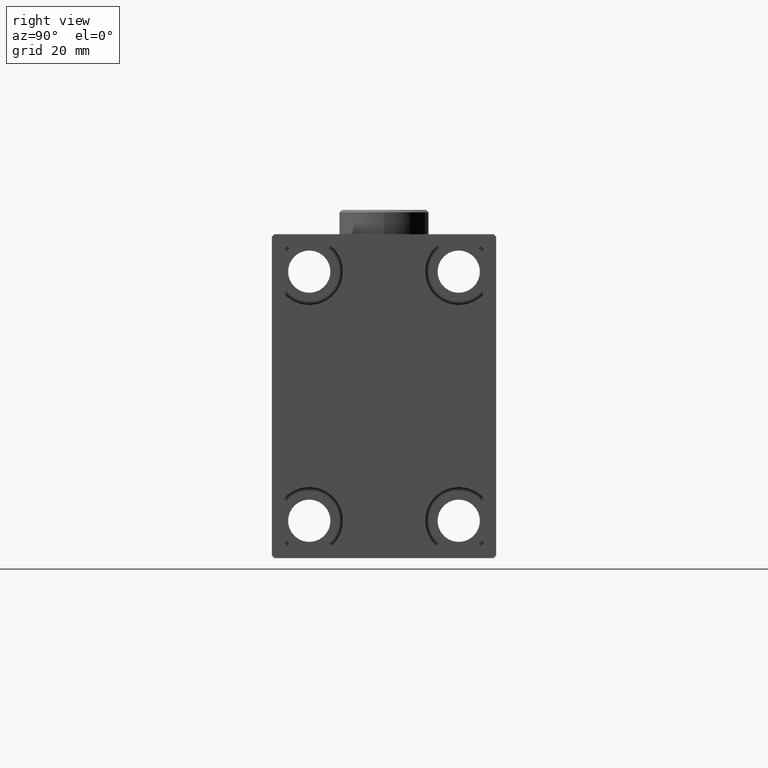
[diagram: clean part render]
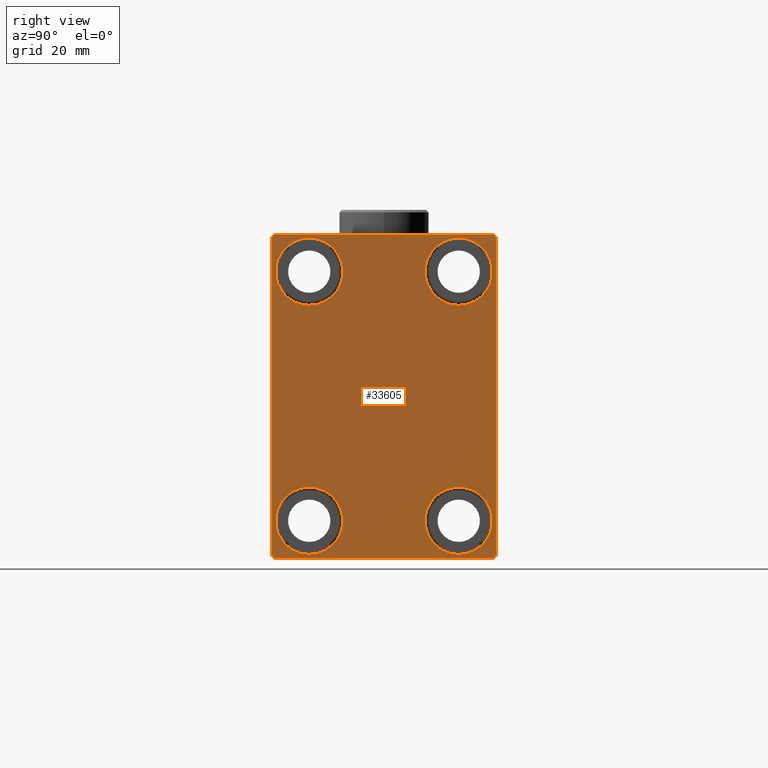
[diagram: same view with one face highlighted and labeled with its STEP entity id]
A machine part, right view. The second image highlights one B-rep face of the part: STEP entity #33605.
In plain terms, the highlighted planar face has unit normal (1, 0, 0).
Its self-contained STEP definition (entity closure, byte-faithful):
#62 = CARTESIAN_POINT ( 'NONE',  ( 110.0000000000000000, -21.99999999999999289, 32.49999999999999289 ) ) ;
#276 = DIRECTION ( 'NONE',  ( -1.000000000000000000, -0.000000000000000000, -0.000000000000000000 ) ) ;
#334 = ORIENTED_EDGE ( 'NONE', *, *, #29458, .T. ) ;
#338 = DIRECTION ( 'NONE',  ( 0.000000000000000000, -0.7071067811865474617, -0.7071067811865474617 ) ) ;
#566 = LINE ( 'NONE', #11296, #34677 ) ;
#817 = EDGE_LOOP ( 'NONE', ( #334, #43858 ) ) ;
#1361 = CARTESIAN_POINT ( 'NONE',  ( 110.0000000000000000, 15.00000000000000355, 25.00000000000000000 ) ) ;
#1776 = VERTEX_POINT ( 'NONE', #27841 ) ;
#1905 = CIRCLE ( 'NONE', #33267, 6.749999999999999112 ) ;
#1995 = CIRCLE ( 'NONE', #22393, 6.749999999999999112 ) ;
#2288 = ORIENTED_EDGE ( 'NONE', *, *, #33664, .T. ) ;
#2917 = EDGE_LOOP ( 'NONE', ( #27823, #28400, #18059, #42601, #19392, #11972, #38236, #21620 ) ) ;
#3177 = EDGE_CURVE ( 'NONE', #36942, #13281, #4876, .T. ) ;
#3228 = FACE_BOUND ( 'NONE', #4999, .T. ) ;
#3736 = EDGE_LOOP ( 'NONE', ( #2288, #44644 ) ) ;
#3737 = ORIENTED_EDGE ( 'NONE', *, *, #29309, .T. ) ;
#3753 = ORIENTED_EDGE ( 'NONE', *, *, #20774, .T. ) ;
#4765 = EDGE_CURVE ( 'NONE', #35739, #29653, #28048, .T. ) ;
#4833 = CARTESIAN_POINT ( 'NONE',  ( 110.0000000000000000, -22.00000000000000711, -32.50000000000000711 ) ) ;
#4876 = LINE ( 'NONE', #40522, #30226 ) ;
#4939 = EDGE_CURVE ( 'NONE', #13281, #29227, #27268, .T. ) ;
#4999 = EDGE_LOOP ( 'NONE', ( #3737, #22423 ) ) ;
#5047 = DIRECTION ( 'NONE',  ( 0.000000000000000000, 0.000000000000000000, 1.000000000000000000 ) ) ;
#5465 = VECTOR ( 'NONE', #21099, 1000.000000000000000 ) ;
#5606 = VECTOR ( 'NONE', #21548, 1000.000000000000000 ) ;
#5653 = CIRCLE ( 'NONE', #42883, 6.749999999999999112 ) ;
#6012 = VERTEX_POINT ( 'NONE', #7398 ) ;
#6659 = FACE_BOUND ( 'NONE', #3736, .T. ) ;
#7093 = VECTOR ( 'NONE', #40934, 1000.000000000000114 ) ;
#7334 = CARTESIAN_POINT ( 'NONE',  ( 110.0000000000000000, -14.99999999999999645, 25.00000000000000000 ) ) ;
#7398 = CARTESIAN_POINT ( 'NONE',  ( 110.0000000000000000, 22.50000000000000000, -32.00000000000000711 ) ) ;
#8468 = CARTESIAN_POINT ( 'NONE',  ( 110.0000000000000000, -14.99999999999999645, 25.00000000000000000 ) ) ;
#8816 = DIRECTION ( 'NONE',  ( 0.000000000000000000, 0.000000000000000000, 1.000000000000000000 ) ) ;
#9495 = EDGE_CURVE ( 'NONE', #26475, #25582, #13604, .T. ) ;
#10050 = VECTOR ( 'NONE', #21597, 1000.000000000000000 ) ;
#10365 = VERTEX_POINT ( 'NONE', #25729 ) ;
#10569 = DIRECTION ( 'NONE',  ( 0.000000000000000000, 0.000000000000000000, 1.000000000000000000 ) ) ;
#10756 = LINE ( 'NONE', #42281, #34184 ) ;
#10848 = VERTEX_POINT ( 'NONE', #44895 ) ;
#10901 = CARTESIAN_POINT ( 'NONE',  ( 110.0000000000000000, 22.50000000000000000, -32.50000000000000711 ) ) ;
#11296 = CARTESIAN_POINT ( 'NONE',  ( 110.0000000000000000, -27.25000000000000000, 27.25000000000000000 ) ) ;
#11356 = AXIS2_PLACEMENT_3D ( 'NONE', #7334, #17400, #24687 ) ;
#11496 = EDGE_CURVE ( 'NONE', #35809, #10848, #14541, .T. ) ;
#11972 = ORIENTED_EDGE ( 'NONE', *, *, #29561, .T. ) ;
#12188 = DIRECTION ( 'NONE',  ( -0.000000000000000000, -0.7071067811865525687, 0.7071067811865425767 ) ) ;
#12948 = AXIS2_PLACEMENT_3D ( 'NONE', #8468, #22395, #5047 ) ;
#13281 = VERTEX_POINT ( 'NONE', #30615 ) ;
#13518 = FACE_OUTER_BOUND ( 'NONE', #2917, .T. ) ;
#13564 = CIRCLE ( 'NONE', #11356, 6.749999999999999112 ) ;
#13604 = LINE ( 'NONE', #24531, #5606 ) ;
#13780 = CARTESIAN_POINT ( 'NONE',  ( 110.0000000000000000, 14.99999999999999645, -25.00000000000000000 ) ) ;
#14541 = LINE ( 'NONE', #24803, #10050 ) ;
#15173 = VECTOR ( 'NONE', #44755, 1000.000000000000000 ) ;
#15600 = EDGE_CURVE ( 'NONE', #10848, #26475, #10756, .T. ) ;
#15824 = ORIENTED_EDGE ( 'NONE', *, *, #22496, .T. ) ;
#17060 = CARTESIAN_POINT ( 'NONE',  ( 110.0000000000000000, 14.99999999999999645, -25.00000000000000000 ) ) ;
#17369 = CARTESIAN_POINT ( 'NONE',  ( 110.0000000000000000, 14.99999999999999645, -31.75000000000000000 ) ) ;
#17400 = DIRECTION ( 'NONE',  ( -1.000000000000000000, -0.000000000000000000, -0.000000000000000000 ) ) ;
#17737 = LINE ( 'NONE', #10901, #15173 ) ;
#18059 = ORIENTED_EDGE ( 'NONE', *, *, #11496, .T. ) ;
#18833 = AXIS2_PLACEMENT_3D ( 'NONE', #1361, #22589, #19159 ) ;
#19159 = DIRECTION ( 'NONE',  ( 0.000000000000000000, 0.000000000000000000, 1.000000000000000000 ) ) ;
#19368 = EDGE_CURVE ( 'NONE', #29227, #35809, #566, .T. ) ;
#19392 = ORIENTED_EDGE ( 'NONE', *, *, #9495, .T. ) ;
#19425 = CARTESIAN_POINT ( 'NONE',  ( 110.0000000000000000, 27.25000000000000355, -27.25000000000000355 ) ) ;
#19510 = FACE_BOUND ( 'NONE', #33044, .T. ) ;
#20160 = VERTEX_POINT ( 'NONE', #40676 ) ;
#20517 = CARTESIAN_POINT ( 'NONE',  ( 110.0000000000000000, 15.00000000000000355, 25.00000000000000000 ) ) ;
#20774 = EDGE_CURVE ( 'NONE', #1776, #30012, #22266, .T. ) ;
#20838 = EDGE_CURVE ( 'NONE', #37562, #36692, #13564, .T. ) ;
#21099 = DIRECTION ( 'NONE',  ( 0.000000000000000000, -1.000000000000000000, -1.541976423090495387E-16 ) ) ;
#21246 = DIRECTION ( 'NONE',  ( -0.000000000000000000, 0.7071067811865474617, -0.7071067811865474617 ) ) ;
#21402 = CARTESIAN_POINT ( 'NONE',  ( 110.0000000000000000, -15.00000000000000355, -18.25000000000000355 ) ) ;
#21507 = AXIS2_PLACEMENT_3D ( 'NONE', #17060, #44963, #27557 ) ;
#21548 = DIRECTION ( 'NONE',  ( 0.000000000000000000, 1.000000000000000000, 0.000000000000000000 ) ) ;
#21597 = DIRECTION ( 'NONE',  ( 0.000000000000000000, 0.000000000000000000, -1.000000000000000000 ) ) ;
#21620 = ORIENTED_EDGE ( 'NONE', *, *, #3177, .T. ) ;
#22266 = CIRCLE ( 'NONE', #37648, 6.749999999999999112 ) ;
#22393 = AXIS2_PLACEMENT_3D ( 'NONE', #13780, #276, #10569 ) ;
#22395 = DIRECTION ( 'NONE',  ( -1.000000000000000000, -0.000000000000000000, -0.000000000000000000 ) ) ;
#22423 = ORIENTED_EDGE ( 'NONE', *, *, #4765, .T. ) ;
#22496 = EDGE_CURVE ( 'NONE', #30012, #1776, #1905, .T. ) ;
#22589 = DIRECTION ( 'NONE',  ( -1.000000000000000000, -0.000000000000000000, -0.000000000000000000 ) ) ;
#23567 = DIRECTION ( 'NONE',  ( 0.000000000000000000, 0.000000000000000000, 1.000000000000000000 ) ) ;
#24376 = DIRECTION ( 'NONE',  ( -1.000000000000000000, -0.000000000000000000, -0.000000000000000000 ) ) ;
#24531 = CARTESIAN_POINT ( 'NONE',  ( 110.0000000000000000, -22.50000000000000711, -32.50000000000000711 ) ) ;
#24687 = DIRECTION ( 'NONE',  ( 0.000000000000000000, 0.000000000000000000, 1.000000000000000000 ) ) ;
#24803 = CARTESIAN_POINT ( 'NONE',  ( 110.0000000000000000, -22.50000000000000711, 32.49999999999999289 ) ) ;
#25373 = CARTESIAN_POINT ( 'NONE',  ( 110.0000000000000000, -14.99999999999999645, 18.25000000000000355 ) ) ;
#25582 = VERTEX_POINT ( 'NONE', #30356 ) ;
#25729 = CARTESIAN_POINT ( 'NONE',  ( 110.0000000000000000, 15.00000000000000355, 18.25000000000000355 ) ) ;
#26157 = CARTESIAN_POINT ( 'NONE',  ( 110.0000000000000000, -15.00000000000000355, -25.00000000000000000 ) ) ;
#26475 = VERTEX_POINT ( 'NONE', #4833 ) ;
#27172 = CARTESIAN_POINT ( 'NONE',  ( 110.0000000000000000, 14.99999999999999645, -18.25000000000000355 ) ) ;
#27207 = CARTESIAN_POINT ( 'NONE',  ( 110.0000000000000000, -15.00000000000000355, -25.00000000000000000 ) ) ;
#27268 = LINE ( 'NONE', #34146, #5465 ) ;
#27429 = CARTESIAN_POINT ( 'NONE',  ( 110.0000000000000000, 0.000000000000000000, 0.000000000000000000 ) ) ;
#27557 = DIRECTION ( 'NONE',  ( 0.000000000000000000, 0.000000000000000000, 1.000000000000000000 ) ) ;
#27823 = ORIENTED_EDGE ( 'NONE', *, *, #4939, .T. ) ;
#27841 = CARTESIAN_POINT ( 'NONE',  ( 110.0000000000000000, -15.00000000000000355, -31.75000000000000000 ) ) ;
#28048 = CIRCLE ( 'NONE', #21507, 6.749999999999999112 ) ;
#28400 = ORIENTED_EDGE ( 'NONE', *, *, #19368, .T. ) ;
#28906 = DIRECTION ( 'NONE',  ( -1.000000000000000000, -0.000000000000000000, -0.000000000000000000 ) ) ;
#29227 = VERTEX_POINT ( 'NONE', #62 ) ;
#29309 = EDGE_CURVE ( 'NONE', #29653, #35739, #1995, .T. ) ;
#29458 = EDGE_CURVE ( 'NONE', #36692, #37562, #30439, .T. ) ;
#29561 = EDGE_CURVE ( 'NONE', #25582, #6012, #40470, .T. ) ;
#29653 = VERTEX_POINT ( 'NONE', #17369 ) ;
#29886 = EDGE_CURVE ( 'NONE', #20160, #10365, #5653, .T. ) ;
#30012 = VERTEX_POINT ( 'NONE', #21402 ) ;
#30226 = VECTOR ( 'NONE', #12188, 999.9999999999998863 ) ;
#30356 = CARTESIAN_POINT ( 'NONE',  ( 110.0000000000000000, 21.99999999999998579, -32.50000000000000711 ) ) ;
#30439 = CIRCLE ( 'NONE', #12948, 6.749999999999999112 ) ;
#30615 = CARTESIAN_POINT ( 'NONE',  ( 110.0000000000000000, 22.00000000000000711, 32.50000000000000000 ) ) ;
#31150 = EDGE_CURVE ( 'NONE', #6012, #36942, #17737, .T. ) ;
#33044 = EDGE_LOOP ( 'NONE', ( #3753, #15824 ) ) ;
#33267 = AXIS2_PLACEMENT_3D ( 'NONE', #26157, #28906, #8816 ) ;
#33605 = ADVANCED_FACE ( 'NONE', ( #3228, #45067, #6659, #19510, #13518 ), #34747, .T. ) ;
#33664 = EDGE_CURVE ( 'NONE', #10365, #20160, #43693, .T. ) ;
#34146 = CARTESIAN_POINT ( 'NONE',  ( 110.0000000000000000, 22.49999999999999289, 32.50000000000000000 ) ) ;
#34184 = VECTOR ( 'NONE', #21246, 1000.000000000000114 ) ;
#34677 = VECTOR ( 'NONE', #338, 1000.000000000000114 ) ;
#34747 = PLANE ( 'NONE',  #37871 ) ;
#35105 = CARTESIAN_POINT ( 'NONE',  ( 110.0000000000000000, 22.49999999999999289, 32.00000000000002132 ) ) ;
#35739 = VERTEX_POINT ( 'NONE', #27172 ) ;
#35809 = VERTEX_POINT ( 'NONE', #38170 ) ;
#36692 = VERTEX_POINT ( 'NONE', #25373 ) ;
#36942 = VERTEX_POINT ( 'NONE', #35105 ) ;
#37562 = VERTEX_POINT ( 'NONE', #38457 ) ;
#37648 = AXIS2_PLACEMENT_3D ( 'NONE', #27207, #37992, #23567 ) ;
#37871 = AXIS2_PLACEMENT_3D ( 'NONE', #27429, #41841, #41402 ) ;
#37992 = DIRECTION ( 'NONE',  ( -1.000000000000000000, -0.000000000000000000, -0.000000000000000000 ) ) ;
#38170 = CARTESIAN_POINT ( 'NONE',  ( 110.0000000000000000, -22.50000000000000711, 31.99999999999999289 ) ) ;
#38236 = ORIENTED_EDGE ( 'NONE', *, *, #31150, .T. ) ;
#38457 = CARTESIAN_POINT ( 'NONE',  ( 110.0000000000000000, -14.99999999999999645, 31.75000000000000000 ) ) ;
#40470 = LINE ( 'NONE', #19425, #7093 ) ;
#40522 = CARTESIAN_POINT ( 'NONE',  ( 110.0000000000000000, 27.24999999999985079, 27.25000000000023093 ) ) ;
#40676 = CARTESIAN_POINT ( 'NONE',  ( 110.0000000000000000, 15.00000000000000355, 31.75000000000000000 ) ) ;
#40934 = DIRECTION ( 'NONE',  ( -0.000000000000000000, 0.7071067811865474617, 0.7071067811865474617 ) ) ;
#41402 = DIRECTION ( 'NONE',  ( 0.000000000000000000, 0.000000000000000000, -1.000000000000000000 ) ) ;
#41773 = DIRECTION ( 'NONE',  ( 0.000000000000000000, 0.000000000000000000, 1.000000000000000000 ) ) ;
#41841 = DIRECTION ( 'NONE',  ( 1.000000000000000000, 0.000000000000000000, 0.000000000000000000 ) ) ;
#42281 = CARTESIAN_POINT ( 'NONE',  ( 110.0000000000000000, -27.25000000000000711, -27.25000000000000711 ) ) ;
#42601 = ORIENTED_EDGE ( 'NONE', *, *, #15600, .T. ) ;
#42883 = AXIS2_PLACEMENT_3D ( 'NONE', #20517, #24376, #41773 ) ;
#43693 = CIRCLE ( 'NONE', #18833, 6.749999999999999112 ) ;
#43858 = ORIENTED_EDGE ( 'NONE', *, *, #20838, .T. ) ;
#44644 = ORIENTED_EDGE ( 'NONE', *, *, #29886, .T. ) ;
#44755 = DIRECTION ( 'NONE',  ( 0.000000000000000000, -1.067522139062650425E-16, 1.000000000000000000 ) ) ;
#44895 = CARTESIAN_POINT ( 'NONE',  ( 110.0000000000000000, -22.50000000000000711, -32.00000000000000711 ) ) ;
#44963 = DIRECTION ( 'NONE',  ( -1.000000000000000000, -0.000000000000000000, -0.000000000000000000 ) ) ;
#45067 = FACE_BOUND ( 'NONE', #817, .T. ) ;